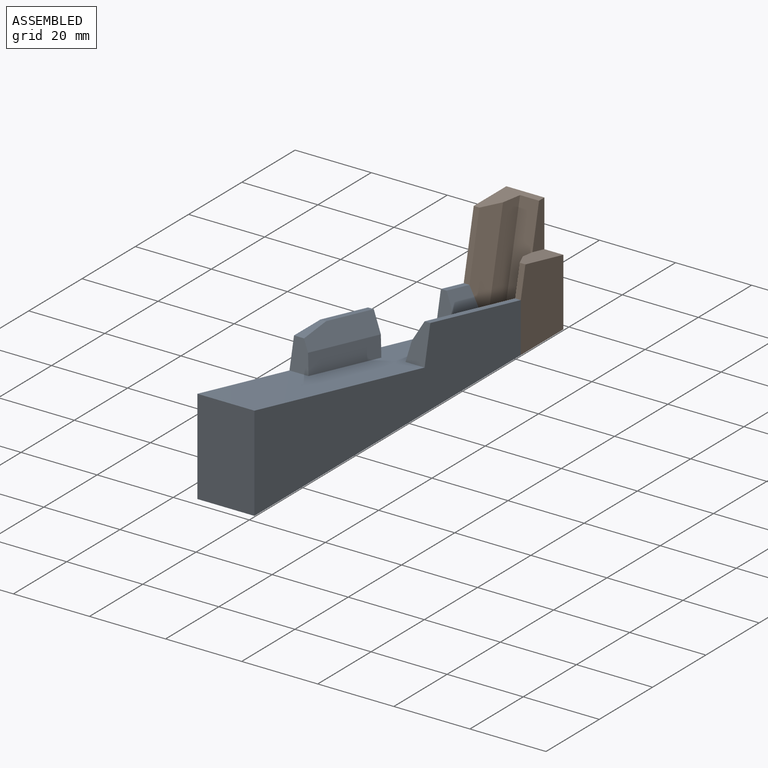
[diagram: assembled view]
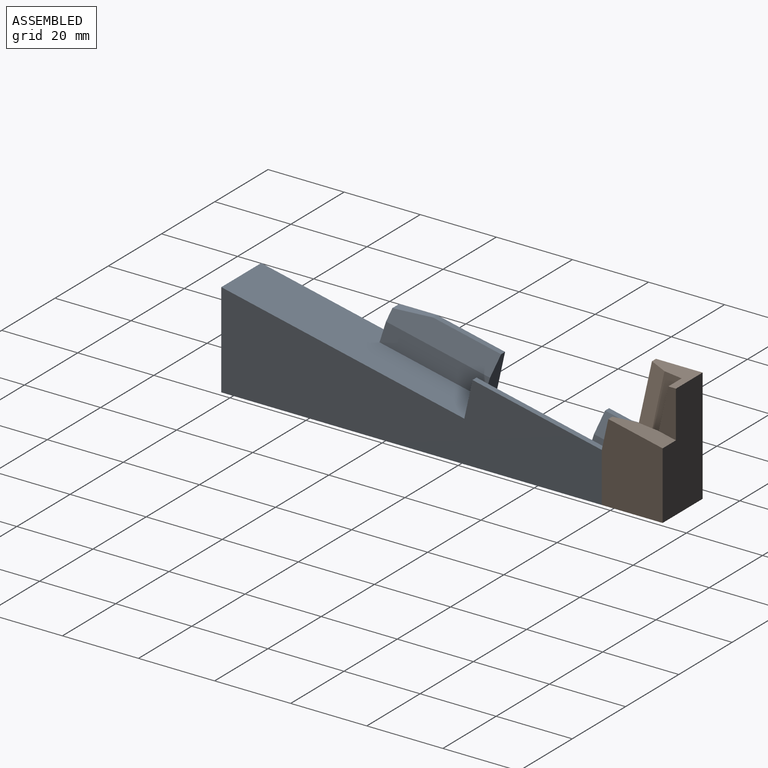
[diagram: assembled view, second angle]
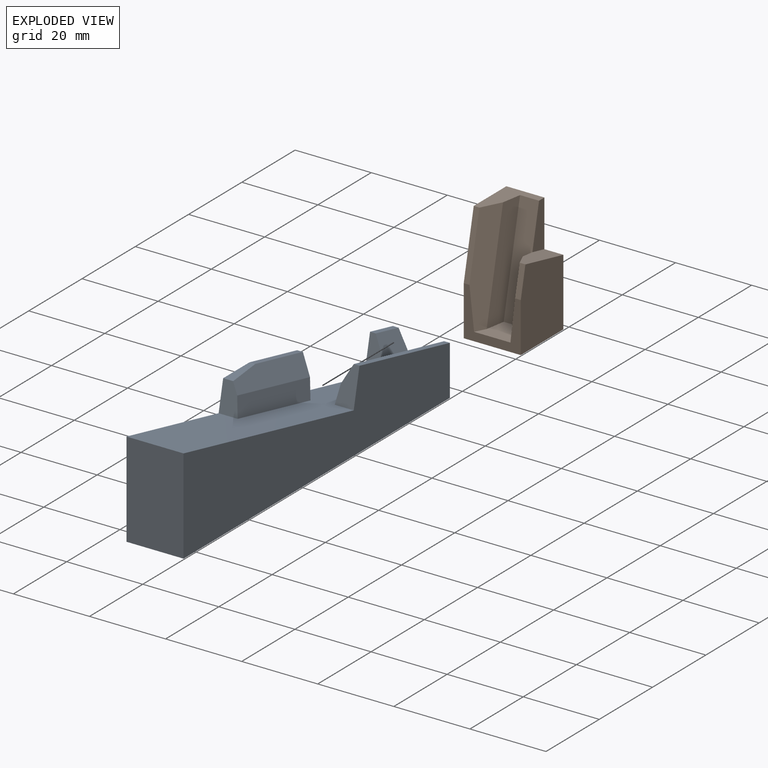
[diagram: exploded view]
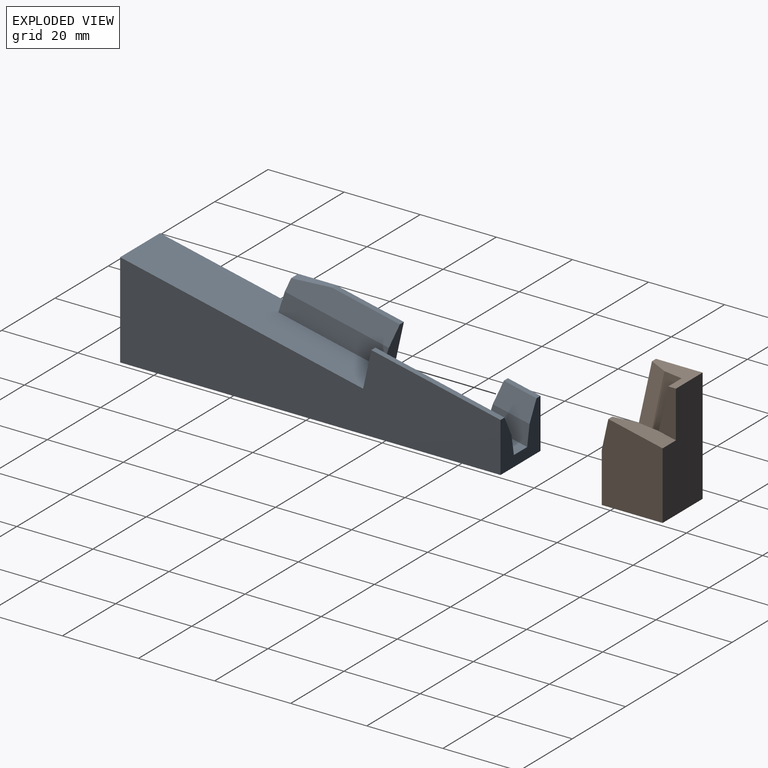
[diagram: exploded view, second angle]
ASSEMBLY  parts=2 mates=3
PART A: 20 faces, bbox 15x100x25 mm
  f0: plane 100x25mm, normal (1,0,0), area 1750.4mm2, adj f6,f7,f8,f14,f15,f16
  f1: plane 100x25mm, normal (-1,0,0), area 1760.1mm2, adj f2,f3,f6,f7,f8,f9,f15,f17
  f2: plane 9.91x2.62mm, normal (0,0,1), area 20.4mm2, adj f1,f3,f4,f19
  f3: plane 17.89x3.97mm, normal (0,0.22,0.98), area 27.5mm2, adj f1,f2,f4,f18
  f4: plane 28.42x8.85mm, normal (0.89,0.1,0.45), area 146.3mm2, adj f2,f3,f5,f18,f19
  f5: plane 28.42x10.94mm, normal (0.98,0.04,0.17), area 142.2mm2, adj f4,f15,f18,f19
  f6: plane 15x13.07mm, normal (0,1,0), area 117.9mm2, adj f0,f1,f7,f9,f10,f11,f12,f13
  f7: plane 100x15mm, normal (0,0,-1), area 1500mm2, adj f0,f1,f6,f8
  f8: plane 25x15mm, normal (0,-1,0), area 375mm2, adj f0,f1,f7,f15
  f9: plane 8.58x1.9mm, normal (0,0.22,0.98), area 13.2mm2, adj f1,f6,f10,f17
  f10: plane 9.66x7.02mm, normal (0.89,0.1,0.45), area 52.7mm2, adj f6,f9,f11,f17
  f11: plane 10.74x7.26mm, normal (0.98,0.04,0.17), area 53mm2, adj f6,f10,f15,f17
  f12: plane 36.12x12.89mm, normal (-0.98,0.04,0.17), area 185mm2, adj f6,f13,f15,f16
  f13: plane 35.04x12.65mm, normal (-0.89,0.1,0.45), area 199.4mm2, adj f6,f12,f14,f16
  f14: plane 33.96x7.53mm, normal (0,0.22,0.98), area 52.2mm2, adj f0,f6,f13,f16
  f15: plane 100x22.17mm, normal (0,0.22,0.98), area 1156.4mm2, adj f0,f1,f5,f6,f8,f11,f12,f16
  f16: plane 9.76x5mm, normal (0,-0.98,0.22), area 36.8mm2, adj f0,f12,f13,f14,f15
  f17: plane 9.76x5mm, normal (0,-0.98,0.22), area 36.8mm2, adj f1,f9,f10,f11,f15
  f18: plane 9.76x5mm, normal (0,0.98,-0.22), area 36.8mm2, adj f1,f3,f4,f5,f15
  f19: plane 7.67x5mm, normal (0,-0.98,0.22), area 32.4mm2, adj f1,f2,f4,f5,f15
PART B: 16 faces, bbox 15x30x16 mm
  f0: plane 20.88x16mm, normal (1,0,0), area 304.8mm2, adj f1,f5,f11,f12,f14
  f1: plane 7.81x1.73mm, normal (0,0.22,0.98), area 12mm2, adj f0,f4,f11,f14
  f2: plane 12.25x10mm, normal (0,1,0), area 57.8mm2, adj f5,f6,f7,f8,f9,f10,f15
  f3: plane 17.55x8.77mm, normal (-0.98,0.04,0.17), area 88.5mm2, adj f4,f9,f13,f14
  f4: plane 18.63x6.61mm, normal (-0.89,0.1,0.45), area 89.9mm2, adj f1,f3,f11,f13,f14
  f5: plane 30x15mm, normal (0,0,-1), area 388.6mm2, adj f0,f2,f6,f12,f14,f15
  f6: plane 30x16mm, normal (-1,0,0), area 448.2mm2, adj f2,f5,f10,f11,f12
  f7: plane 27.75x8.87mm, normal (0.89,0.1,0.45), area 145.8mm2, adj f2,f8,f10,f11,f13
  f8: plane 27.75x11.27mm, normal (0.98,0.04,0.17), area 144.3mm2, adj f2,f7,f9,f13
  f9: plane 27.75x6.15mm, normal (0,0.22,0.98), area 142.1mm2, adj f2,f3,f8,f13,f15
  f10: plane 16.93x3.75mm, normal (0,0.22,0.98), area 26mm2, adj f2,f6,f7,f11
  f11: plane 15x13.07mm, normal (0,0,1), area 79.5mm2, adj f0,f1,f4,f6,f7,f10,f12,f13
  f12: plane 16x15mm, normal (0,-1,0), area 240mm2, adj f0,f5,f6,f11
  f13: plane 9.55x7.84mm, normal (0,1,0), area 52.3mm2, adj f3,f4,f7,f8,f9,f11
  f14: plane 14.27x5mm, normal (0,0.98,-0.22), area 59.9mm2, adj f0,f1,f3,f4,f5,f15
  f15: plane 12.28x4.51mm, normal (1,0,0), area 39mm2, adj f2,f5,f9,f14
PLACE A t=(-5.54,-0.88,-44.78)mm
PLACE B rot(axis=(1,0,0),90deg) t=(-5.54,115.94,-114.78)mm
MATE planar B.f0 <-> A.f0  axis (1,0,0) through (1.96,107.04,-35.21)mm
MATE planar B.f12 <-> A.f7  axis (0,0,-1) through (-5.54,107.12,-44.78)mm
MATE planar B.f11 <-> A.f6  axis (0,-1,0) through (-10.31,99.12,-42.53)mm
